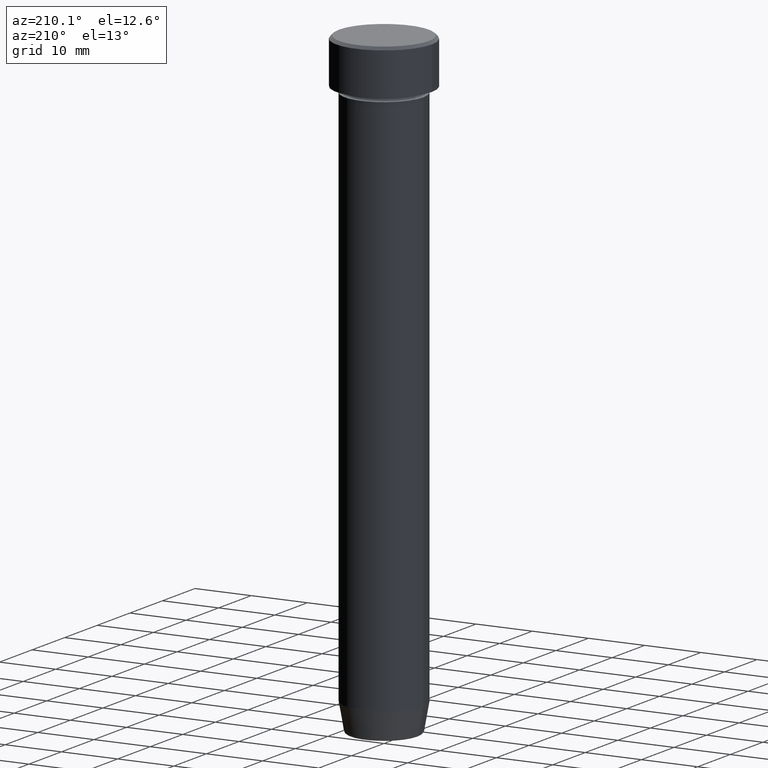
[diagram: clean part render]
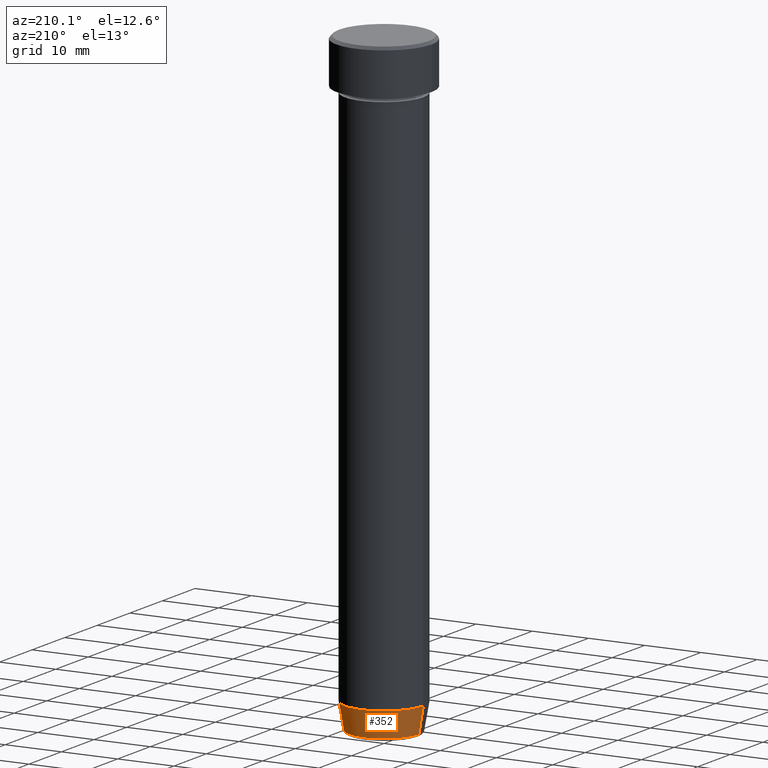
[diagram: same view with one face highlighted and labeled with its STEP entity id]
A machine part, auxiliary view. The second image highlights one B-rep face of the part: STEP entity #352.
In plain terms, the highlighted conical surface has half-angle 10 deg.
Its self-contained STEP definition (entity closure, byte-faithful):
#17 = EDGE_LOOP ( 'NONE', ( #340, #322, #542, #75 ) ) ;
#47 = DIRECTION ( 'NONE',  ( 1.000000000000000000, 0.000000000000000000, 0.000000000000000000 ) ) ;
#54 = DIRECTION ( 'NONE',  ( -0.1736481776669302479, 2.126576849575770682E-17, 0.9848077530122081313 ) ) ;
#75 = ORIENTED_EDGE ( 'NONE', *, *, #587, .F. ) ;
#79 = VECTOR ( 'NONE', #54, 1000.000000000000114 ) ;
#89 = CARTESIAN_POINT ( 'NONE',  ( 0.000000000000000000, 0.000000000000000000, -109.9999999999999858 ) ) ;
#120 = AXIS2_PLACEMENT_3D ( 'NONE', #532, #482, #199 ) ;
#128 = LINE ( 'NONE', #327, #79 ) ;
#156 = LINE ( 'NONE', #170, #291 ) ;
#170 = CARTESIAN_POINT ( 'NONE',  ( 6.118365096457673680, 0.000000000000000000, -109.9999999999999858 ) ) ;
#175 = DIRECTION ( 'NONE',  ( -0.000000000000000000, -0.000000000000000000, 1.000000000000000000 ) ) ;
#185 = DIRECTION ( 'NONE',  ( -1.000000000000000000, 0.000000000000000000, 0.000000000000000000 ) ) ;
#199 = DIRECTION ( 'NONE',  ( 1.000000000000000000, 0.000000000000000000, 0.000000000000000000 ) ) ;
#207 = VERTEX_POINT ( 'NONE', #257 ) ;
#222 = VERTEX_POINT ( 'NONE', #489 ) ;
#249 = CIRCLE ( 'NONE', #120, 6.999999999999999112 ) ;
#257 = CARTESIAN_POINT ( 'NONE',  ( -6.191219157375138060, 8.077292158965354448E-16, -109.5868240888334384 ) ) ;
#269 = AXIS2_PLACEMENT_3D ( 'NONE', #89, #556, #47 ) ;
#291 = VECTOR ( 'NONE', #495, 1000.000000000000114 ) ;
#322 = ORIENTED_EDGE ( 'NONE', *, *, #363, .T. ) ;
#327 = CARTESIAN_POINT ( 'NONE',  ( -6.118365096457673680, 7.492836231391777609E-16, -109.9999999999999858 ) ) ;
#340 = ORIENTED_EDGE ( 'NONE', *, *, #372, .T. ) ;
#344 = CARTESIAN_POINT ( 'NONE',  ( -6.999999999999999112, 8.572527594031472204E-16, -104.9999999999999858 ) ) ;
#352 = ADVANCED_FACE ( 'NONE', ( #416 ), #397, .T. ) ;
#363 = EDGE_CURVE ( 'NONE', #207, #410, #128, .T. ) ;
#372 = EDGE_CURVE ( 'NONE', #222, #207, #419, .T. ) ;
#397 = CONICAL_SURFACE ( 'NONE', #269, 6.118365096457673680, 0.1745329251994328645 ) ;
#410 = VERTEX_POINT ( 'NONE', #344 ) ;
#411 = EDGE_CURVE ( 'NONE', #590, #410, #249, .T. ) ;
#416 = FACE_OUTER_BOUND ( 'NONE', #17, .T. ) ;
#419 = CIRCLE ( 'NONE', #595, 6.191219157375138060 ) ;
#420 = CARTESIAN_POINT ( 'NONE',  ( 0.000000000000000000, 0.000000000000000000, -109.5868240888334384 ) ) ;
#482 = DIRECTION ( 'NONE',  ( -0.000000000000000000, -0.000000000000000000, 1.000000000000000000 ) ) ;
#489 = CARTESIAN_POINT ( 'NONE',  ( 6.191219157375138060, 0.000000000000000000, -109.5868240888334384 ) ) ;
#495 = DIRECTION ( 'NONE',  ( 0.1736481776669302479, 0.000000000000000000, 0.9848077530122081313 ) ) ;
#532 = CARTESIAN_POINT ( 'NONE',  ( 0.000000000000000000, 0.000000000000000000, -104.9999999999999858 ) ) ;
#542 = ORIENTED_EDGE ( 'NONE', *, *, #411, .F. ) ;
#544 = CARTESIAN_POINT ( 'NONE',  ( 6.999999999999999112, 0.000000000000000000, -104.9999999999999858 ) ) ;
#556 = DIRECTION ( 'NONE',  ( -0.000000000000000000, -0.000000000000000000, 1.000000000000000000 ) ) ;
#587 = EDGE_CURVE ( 'NONE', #222, #590, #156, .T. ) ;
#590 = VERTEX_POINT ( 'NONE', #544 ) ;
#595 = AXIS2_PLACEMENT_3D ( 'NONE', #420, #175, #185 ) ;